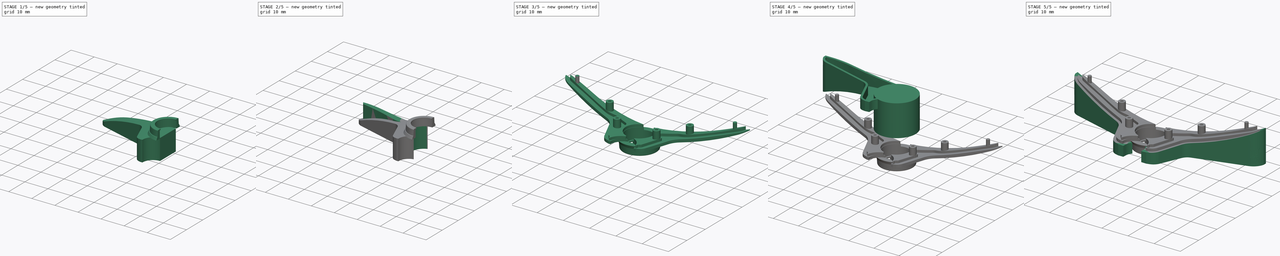
[diagram: build sequence overview — one tinted view per stage of 5, left to right]
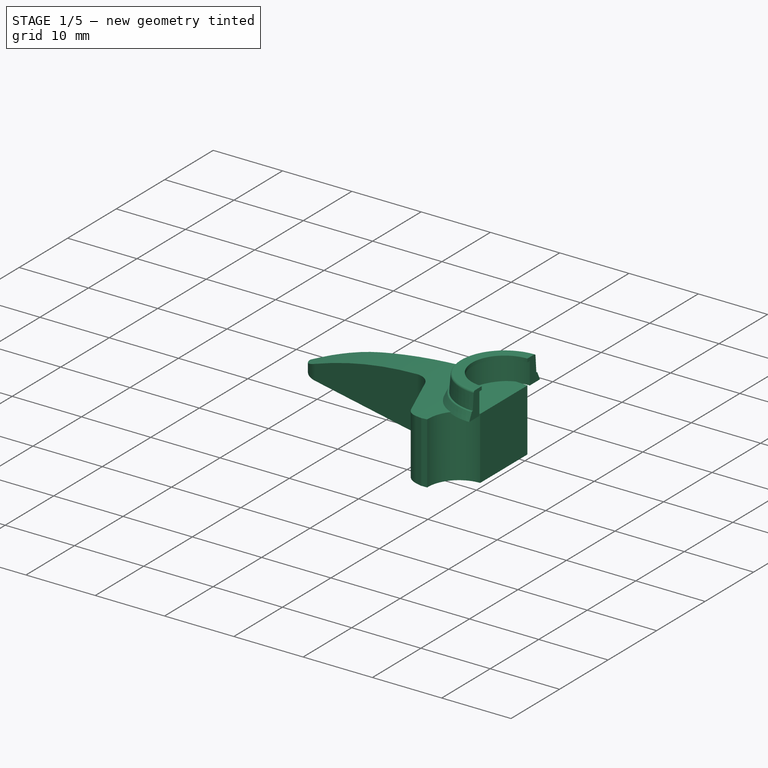
[diagram: stage 1 of 5 — iso view after this stage's code; geometry added in this stage tinted green]
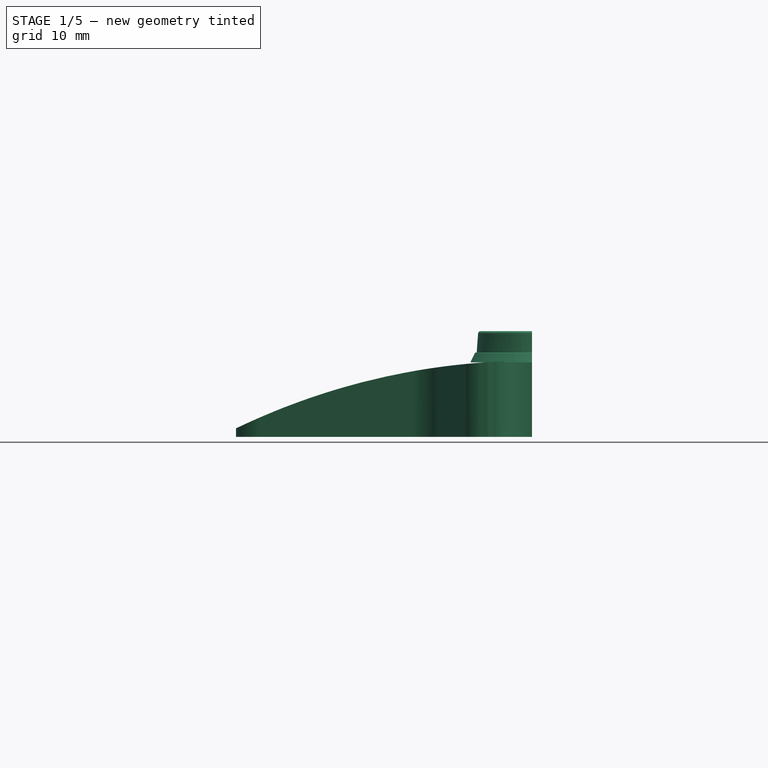
[diagram: stage 1 of 5 — front view after this stage's code; geometry added in this stage tinted green]
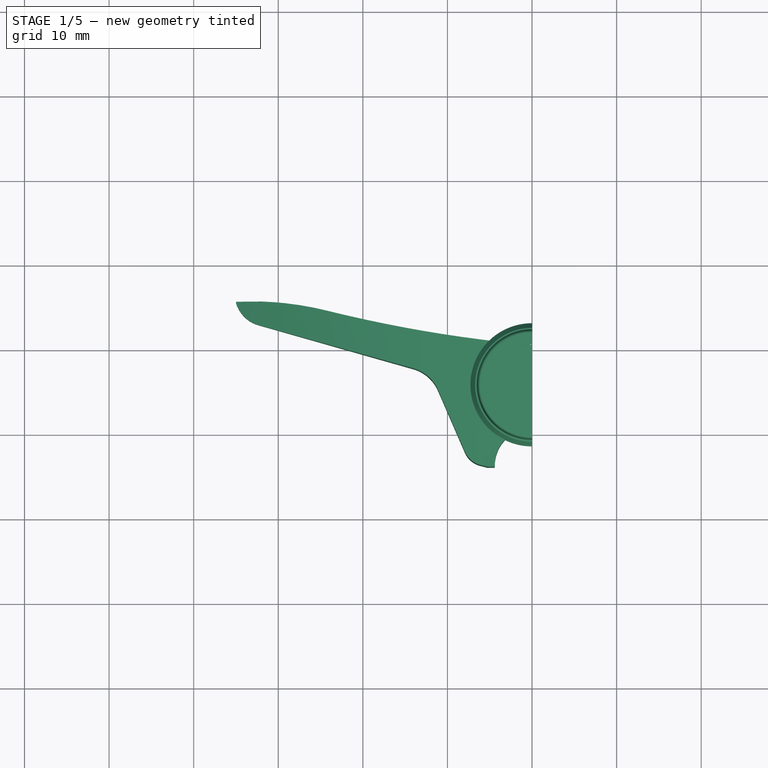
[diagram: stage 1 of 5 — top view after this stage's code; geometry added in this stage tinted green]
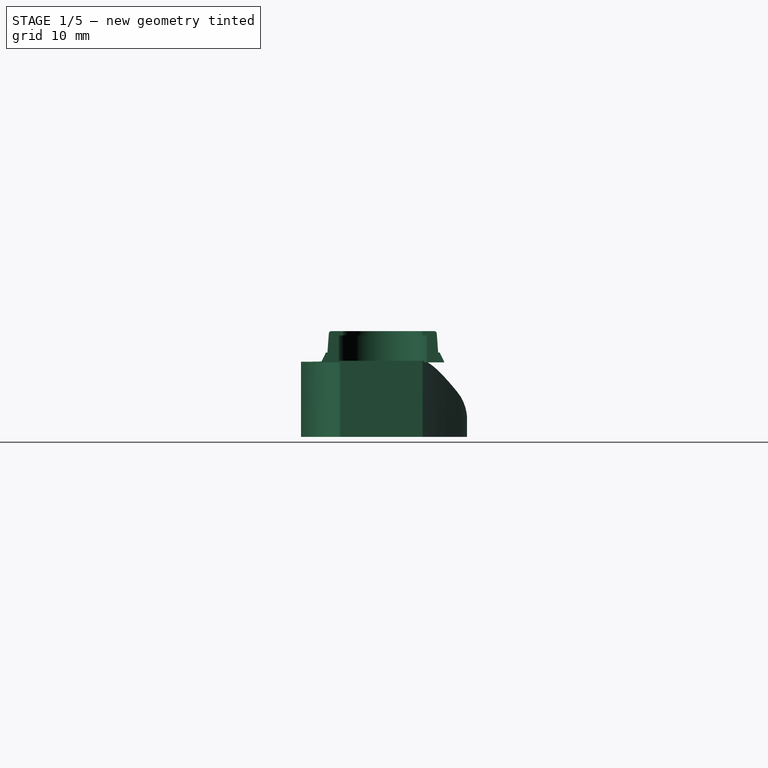
[diagram: stage 1 of 5 — right view after this stage's code; geometry added in this stage tinted green]
FCSTD DOCUMENT  (FreeCAD 0.14R3683 (Git))
Label: cap
License: CC-BY 3.0
LicenseURL: http://creativecommons.org/licenses/by/3.0/
objects: Sketcher::SketchObject×14, PartDesign::Pocket×9, PartDesign::Pad×3, App::DocumentObjectGroup×3, Part::MultiFuse×3, Part::Extrusion×2, Part::Thickness×2, Part::Cut×2, Part::Mirroring×2, Image::ImagePlane×1, Part::Feature×1, Part::Box×1, Part::MultiCommon×1, PartDesign::Revolution×1
note: 54 computed .brp shape members not serialized (recipe doc carries the construction recipe); baked Part::Feature solids carry a one-line shape summary decoded from their .brp

FEATURE [App::DocumentObjectGroup] Group001  label="bottom designs"
  Group = -> [Pad001,Pocket005,Pad002,Pocket006,Pocket007]
FEATURE [PartDesign::Pad] Pad
  Length = 9
  Length2 = 100
  Sketch = -> Sketch
  Type = 0
FEATURE [Sketcher::SketchObject] Sketch002
  Placement = pos=(0,0,9) rot=(0,0,1;0rad)
  Support = -> Pad [Face6]
  sketch-geometry (4):
    g0: ArcOfCircle CenterX=-33.4665 CenterY=-31.5993 CenterZ=0 NormalX=0 NormalY=0 NormalZ=1 Radius=37.3928 StartAngle=1.32181 EndAngle=1.61182
    g1: ArcOfCircle CenterX=13.5783 CenterY=153.423 CenterZ=0 NormalX=0 NormalY=0 NormalZ=1 Radius=153.517 StartAngle=4.4634 EndAngle=4.62383
    g2: LineSegment StartX=-35 StartY=5.76197 StartZ=0 EndX=0 EndY=5.76197 EndZ=0
    g3: LineSegment StartX=0 StartY=5.76197 StartZ=0 EndX=0 EndY=0.507838 EndZ=0
  constraints (14):
    c: Coincident(g1,g0)
    c: PointOnObject(g1,g-2)
    c: Tangent(g1,g0)
    c: DistanceX(g0) = -35
    c: DistanceY(g0) = 5.76197
    c: Horizontal(g2)
    c: Coincident(g2,g3)
    c: Coincident(g3,g1)
    c: Coincident(g2,g0)
    c: PointOnObject(g2,g-2)
    c: DistanceX(g0) = -24.252
    c: DistanceY(g0) = 4.64031
    c: DistanceY(g1) = 0.507838
    c: Radius(g0) = 37.3928
FEATURE [PartDesign::Pocket] Pocket001
  Length = 5
  Sketch = -> Sketch002
  Type = 1
FEATURE [Sketcher::SketchObject] Sketch001
  Placement = pos=(0,-14.0522,0) rot=(1,0,0;1.5708rad)
  Support = -> Pocket001 [Face8]
  sketch-geometry (3):
    g0: ArcOfCircle CenterX=3.14325e-05 CenterY=-71.5626 CenterZ=0 NormalX=0 NormalY=0 NormalZ=1 Radius=80.5626 StartAngle=1.5708 EndAngle=2.02022
    g1: LineSegment StartX=-35 StartY=1 StartZ=0 EndX=-35 EndY=9 EndZ=0
    g2: LineSegment StartX=-35 StartY=9 StartZ=0 EndX=0 EndY=9 EndZ=0
  constraints (10):
    c: DistanceY(g-1,g0) = 1
    c: Coincident(g1,g2)
    c: Coincident(g1,g0)
    c: Distance(g1) = 8
    c: Horizontal(g2)
    c: Vertical(g1)
    c: Distance(g2) = 35
    c: PointOnObject(g2,g-2)
    c: Coincident(g2,g0)
    c: Tangent(g2,g0)
FEATURE [PartDesign::Pocket] Pocket
  Length = 5
  Sketch = -> Sketch001
  Type = 1
FEATURE [Sketcher::SketchObject] Sketch003
  Placement = pos=(0,0,0) rot=(1,0,0;3.14159rad)
  Support = -> Pocket [Face2]
  sketch-geometry (12):
    g0: LineSegment StartX=-32.3411 StartY=-2.9757 StartZ=0 EndX=-14.0446 EndY=2.22199 EndZ=0
    g1: LineSegment StartX=-11.1137 StartY=4.78757 StartZ=0 EndX=-7.93918 EndY=12.1014 EndZ=0
    g2: LineSegment StartX=-6.12925 StartY=13.6469 StartZ=0 EndX=-5.25257 EndY=13.8727 EndZ=0
    g3: LineSegment StartX=0.015355 StartY=14.0522 StartZ=0 EndX=-35 EndY=14.0522 EndZ=0
    g4: ArcOfCircle CenterX=-31.2834 CenterY=-6.69923 CenterZ=0 NormalX=0 NormalY=0 NormalZ=1 Radius=3.87086 StartAngle=1.84758 EndAngle=2.85837
    g5: ArcOfCircle CenterX=-15.2882 CenterY=6.59946 CenterZ=0 NormalX=0 NormalY=0 NormalZ=1 Radius=4.55069 StartAngle=4.98918 EndAngle=5.87368
    g6: ArcOfCircle CenterX=-5.45297 CenterY=11.0223 CenterZ=0 NormalX=0 NormalY=0 NormalZ=1 Radius=2.71031 StartAngle=1.82298 EndAngle=2.73208
    g7: LineSegment StartX=-35 StartY=14.0522 StartZ=0 EndX=-35 EndY=-5.6175 EndZ=0
    g8: ArcOfCircle CenterX=0.0535813 CenterY=13.6795 CenterZ=0 NormalX=0 NormalY=0 NormalZ=1 Radius=4.4547 StartAngle=3.20574 EndAngle=4.70381
    g9: LineSegment StartX=0.015355 StartY=9.22501 StartZ=0 EndX=0.015355 EndY=14.0522 EndZ=0
    g10: LineSegment StartX=-5.25257 StartY=13.8727 StartZ=0 EndX=-4.40823 EndY=13.8596 EndZ=0
    g11: LineSegment StartX=-4.40823 StartY=13.8596 StartZ=0 EndX=-4.39195 EndY=13.394 EndZ=0
  constraints (18):
    c: Horizontal(g3)
    c: Tangent(g0,g4)
    c: Tangent(g0,g5)
    c: Tangent(g1,g5)
    c: Tangent(g1,g6)
    c: Tangent(g2,g6)
    c: Coincident(g7,g3)
    c: Coincident(g7,g4)
    c: Vertical(g7)
    c: DistanceY(g-1,g4) = -5.6175
    c: DistanceX(g2) = -5.25257
    c: DistanceY(g2) = 13.8727
    c: Coincident(g9,g8)
    c: Coincident(g9,g3)
    c: Vertical(g9)
    c: Coincident(g10,g11)
    c: Coincident(g11,g8)
    c: DistanceX(g4) = -35
FEATURE [PartDesign::Pocket] Pocket002
  Length = 5
  Sketch = -> Sketch003
  Type = 1
FEATURE [App::DocumentObjectGroup] Group002  label="top designs"
  Group = -> [Pocket001,Pocket,Pocket002,Pocket003,Pad]
FEATURE [Sketcher::SketchObject] Sketch018
  Placement = pos=(0,0,0) rot=(0.57735,0.57735,0.57735;2.0944rad)
  sketch-geometry (11):
    g0: LineSegment [constr] StartX=-4.19705 StartY=12.7682 StartZ=0 EndX=-4.19705 EndY=4.40039 EndZ=0
    g1: LineSegment StartX=-11.4812 StartY=8.80623 StartZ=0 EndX=-9.39705 EndY=8.80623 EndZ=0
    g2: LineSegment StartX=-9.39705 StartY=8.80623 StartZ=0 EndX=-9.39705 EndY=12 EndZ=0
    g3: LineSegment StartX=-9.39705 StartY=12 StartZ=0 EndX=-8.89705 EndY=12 EndZ=0
    g4: LineSegment StartX=-8.89705 StartY=12 StartZ=0 EndX=-8.89705 EndY=12.5 EndZ=0
    g5: LineSegment StartX=-8.89705 StartY=12.5 StartZ=0 EndX=-10.279 EndY=12.5 EndZ=0
    g6: LineSegment StartX=-10.5747 StartY=12.2256 StartZ=0 EndX=-10.742 EndY=9.98066 EndZ=0
    g7: LineSegment StartX=-10.742 StartY=9.98066 StartZ=0 EndX=-10.8131 EndY=9.98066 EndZ=0
    g8: LineSegment StartX=-10.9725 StartY=9.87981 StartZ=0 EndX=-11.4812 EndY=8.80623 EndZ=0
    g9: ArcOfCircle CenterX=-10.279 CenterY=12.2035 CenterZ=0 NormalX=0 NormalY=0 NormalZ=1 Radius=0.296478 StartAngle=1.5708 EndAngle=3.0672
    g10: ArcOfCircle CenterX=-10.8131 CenterY=9.80429 CenterZ=0 NormalX=0 NormalY=0 NormalZ=1 Radius=0.176366 StartAngle=1.5708 EndAngle=2.6991
  constraints (26):
    c: Vertical(g0)
    c: Coincident(g1,g2)
    c: Vertical(g2)
    c: Coincident(g2,g3)
    c: Coincident(g3,g4)
    c: Coincident(g4,g5)
    c: Horizontal(g5)
    c: Coincident(g6,g7)
    c: Coincident(g8,g1)
    c: Tangent(g6,g9)
    c: Tangent(g5,g9)
    c: Distance(g2,g5) = 0.5
    c: Parallel(g3,g5)
    c: Vertical(g4)
    c: Distance(g3) = 0.5
    c: DistanceX(g-1,g0) = -4.19705
    c: Distance(g1,g0) = 5.2
    c: Horizontal(g7)
    c: Tangent(g7,g10)
    c: Tangent(g8,g10)
    c: Distance(g6,g2) = 1.34496
    c: Distance(g7,g2) = 1.41606
    c: Distance(g8,g2) = 1.57544
    c: Distance(g5,g2) = 0.881982
    c: Distance(g6,g2) = 1.17764
    c: Horizontal(g1)
FEATURE [PartDesign::Revolution] Revolution  label="cylinder"
  Angle = 180
  Axis = (0,0,-8.36785)
  Base = (0,-4.19705,12.7682)
  Placement = pos=(0,0,0) rot=(0.57735,0.57735,0.57735;2.0944rad)
  ReferenceAxis = -> Sketch018 [Axis0]
  Sketch = -> Sketch018
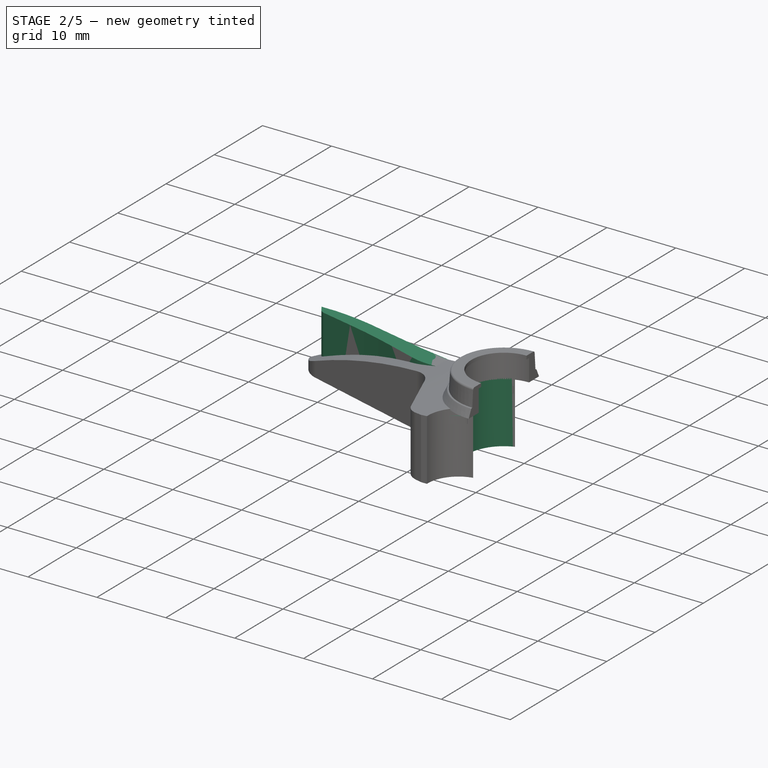
[diagram: stage 2 of 5 — iso view after this stage's code; geometry added in this stage tinted green]
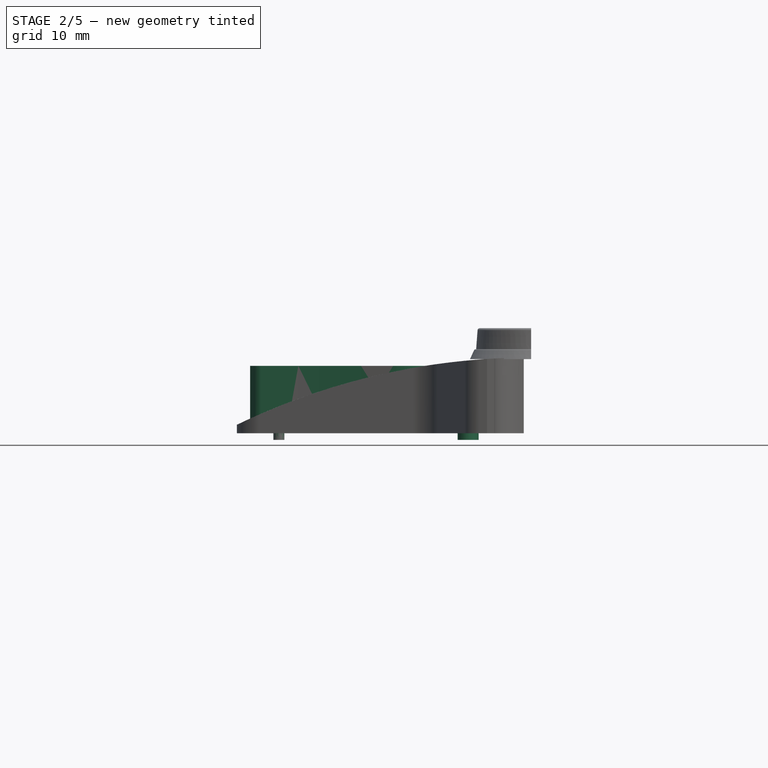
[diagram: stage 2 of 5 — front view after this stage's code; geometry added in this stage tinted green]
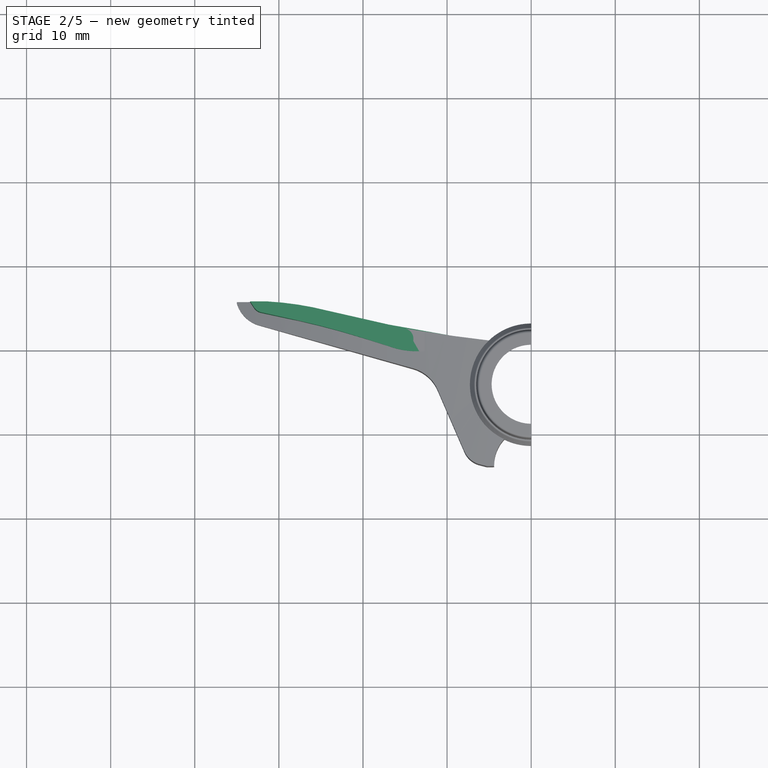
[diagram: stage 2 of 5 — top view after this stage's code; geometry added in this stage tinted green]
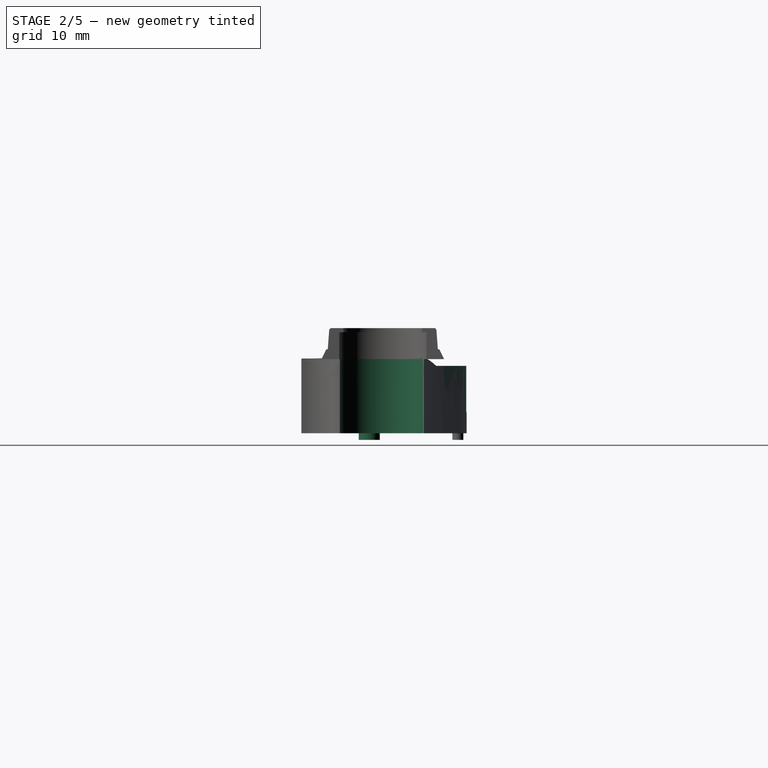
[diagram: stage 2 of 5 — right view after this stage's code; geometry added in this stage tinted green]
FEATURE [Sketcher::SketchObject] Sketch
  sketch-geometry (5):
    g0: LineSegment [constr] StartX=-30 StartY=4.78126 StartZ=0 EndX=30 EndY=4.78126 EndZ=0
    g1: LineSegment StartX=-35 StartY=5.76197 StartZ=0 EndX=0 EndY=5.76197 EndZ=0
    g2: LineSegment StartX=0 StartY=5.76197 StartZ=0 EndX=0 EndY=-14.0522 EndZ=0
    g3: LineSegment StartX=0 StartY=-14.0522 StartZ=0 EndX=-35 EndY=-14.0522 EndZ=0
    g4: LineSegment StartX=-35 StartY=-14.0522 StartZ=0 EndX=-35 EndY=5.76197 EndZ=0
  constraints (14):
    c: Horizontal(g0)
    c: Symmetric(g0,g0,g-2)
    c: Distance(g0) = 60
    c: Coincident(g1,g2)
    c: Coincident(g2,g3)
    c: Coincident(g3,g4)
    c: Coincident(g4,g1)
    c: Horizontal(g1)
    c: Horizontal(g3)
    c: Vertical(g2)
    c: Vertical(g4)
    c: PointOnObject(g-1,g2)
    c: DistanceX(g1) = -35
    c: DistanceY(g1) = 5.76197
FEATURE [Sketcher::SketchObject] Sketch007
  sketch-geometry (25):
    g0: LineSegment StartX=-33.4169 StartY=5.72741 StartZ=0 EndX=-32.9294 EndY=4.99478 EndZ=0
    g1: LineSegment StartX=-32.1282 StartY=4.4453 StartZ=0 EndX=-27.6867 EndY=3.45896 EndZ=0
    g2: LineSegment StartX=-20.2284 StartY=1.4473 StartZ=0 EndX=-16.4177 EndY=0.233404 EndZ=0
    g3: LineSegment StartX=-13.3166 StartY=-0.198197 StartZ=0 EndX=-12.5267 EndY=-0.173071 EndZ=0
    g4: LineSegment StartX=-11.2585 StartY=-0.372173 StartZ=0 EndX=-7.0205 EndY=-1.88682 EndZ=0
    g5: LineSegment StartX=-7.38029 StartY=-4.39596 StartZ=0 EndX=-8.19656 EndY=-4.4437 EndZ=0
    g6: LineSegment StartX=-8.89985 StartY=-5.53908 StartZ=0 EndX=-6.36701 EndY=-12.0529 EndZ=0
    g7: ArcOfCircle CenterX=-31.8461 CenterY=5.71556 CenterZ=0 NormalX=0 NormalY=0 NormalZ=1 Radius=1.3012 StartAngle=3.72867 EndAngle=4.49386
    g8: ArcOfCircle CenterX=-46.331 CenterY=-80.4964 CenterZ=0 NormalX=0 NormalY=0 NormalZ=1 Radius=86.0006 StartAngle=1.26242 EndAngle=1.35227
    g9: ArcOfCircle CenterX=-13.6107 CenterY=9.04545 CenterZ=0 NormalX=0 NormalY=0 NormalZ=1 Radius=9.24833 StartAngle=4.40401 EndAngle=4.74419
    g10: ArcOfCircle CenterX=-12.4173 CenterY=-3.61435 CenterZ=0 NormalX=0 NormalY=0 NormalZ=1 Radius=3.44301 StartAngle=1.22755 EndAngle=1.60259
    g11: ArcOfCircle CenterX=-7.45579 CenterY=-3.10477 CenterZ=0 NormalX=0 NormalY=0 NormalZ=1 Radius=1.2934 StartAngle=4.7708 EndAngle=7.51073
    g12: ArcOfCircle CenterX=-8.14957 CenterY=-5.24733 CenterZ=0 NormalX=0 NormalY=0 NormalZ=1 Radius=0.80501 StartAngle=1.6292 EndAngle=3.51244
    g13: ArcOfCircle CenterX=-6.08139 CenterY=-13.2746 CenterZ=0 NormalX=0 NormalY=0 NormalZ=1 Radius=0.800139 StartAngle=0.109121 EndAngle=1.20435
    g14: ArcOfCircle CenterX=-5.65402 CenterY=-11.7756 CenterZ=0 NormalX=0 NormalY=0 NormalZ=1 Radius=0.764995 StartAngle=3.51244 EndAngle=4.52745
    g15: ArcOfCircle CenterX=-5.03609 CenterY=-13.3096 CenterZ=0 NormalX=0 NormalY=0 NormalZ=1 Radius=0.278191 StartAngle=2.68683 EndAngle=5.60429
    g16: ArcOfCircle CenterX=0.43611 CenterY=-14.6337 CenterZ=0 NormalX=0 NormalY=0 NormalZ=1 Radius=5.3799 StartAngle=1.94836 EndAngle=2.92629
    g17: ArcOfCircle CenterX=-1.87958 CenterY=-9.48073 CenterZ=0 NormalX=0 NormalY=0 NormalZ=1 Radius=0.365439 StartAngle=5.85425 EndAngle=7.68842
    g18: ArcOfCircle CenterX=-0.11242 CenterY=-4.19705 CenterZ=0 NormalX=0 NormalY=0 NormalZ=1 Radius=5.21075 StartAngle=1.98622 EndAngle=4.37865
    g19: LineSegment StartX=-1.99259 StartY=0.699368 StartZ=0 EndX=-1.99259 EndY=0.570496 EndZ=0
    g20: LineSegment StartX=-2.21537 StartY=0.570496 StartZ=0 EndX=-1.99259 EndY=0.570496 EndZ=0
    g21: LineSegment StartX=-33.4169 StartY=5.72741 StartZ=0 EndX=-31.3498 EndY=5.72741 EndZ=0
    g22: GeomPoint [constr] X=-24.252 Y=4.64031 Z=0
    g23: ArcOfCircle CenterX=-33.4358 CenterY=-31.6072 CenterZ=0 NormalX=0 NormalY=0 NormalZ=1 Radius=37.3928 StartAngle=1.32265 EndAngle=1.51498
    g24: ArcOfCircle CenterX=13.8548 CenterY=155.043 CenterZ=0 NormalX=0 NormalY=0 NormalZ=1 Radius=155.155 StartAngle=4.46425 EndAngle=4.61007
  constraints (43):
    c: Tangent(g0,g7)
    c: Tangent(g1,g7)
    c: Tangent(g1,g8)
    c: Tangent(g2,g8)
    c: Tangent(g2,g9)
    c: Tangent(g3,g9)
    c: Tangent(g3,g10)
    c: Tangent(g4,g10)
    c: Tangent(g4,g11)
    c: Tangent(g5,g11)
    c: Tangent(g5,g12)
    c: Tangent(g6,g12)
    c: DistanceX(g4) = -7.0205
    c: DistanceY(g4) = -1.88682
    c: Coincident(g14,g6)
    c: Coincident(g14,g13)
    c: Tangent(g6,g14)
    c: Coincident(g15,g13)
    c: Coincident(g16,g15)
    c: Coincident(g17,g16)
    c: DistanceX(g16) = -1.54725
    c: DistanceY(g16) = -9.63272
    c: DistanceX(g15) = -5.03609
    c: DistanceY(g15) = -13.3096
    c: Coincident(g18,g17)
    c: Vertical(g19)
    c: Coincident(g20,g18)
    c: Coincident(g20,g19)
    c: Coincident(g21,g0)
    c: Horizontal(g21)
    c: DistanceX(g22) = -24.252
    c: DistanceY(g22) = 4.64031
    c: Coincident(g23,g22)
    c: Coincident(g24,g22)
    c: Tangent(g23,g24)
    c: Radius(g23) = 37.3928
    c: Coincident(g23,g21)
    c: Coincident(g24,g19)
    c: DistanceX(g0) = -33.4169
    c: DistanceY(g0) = 5.72741
    c: DistanceY(g-1,g18) = -4.19705
    c: Horizontal(g20)
    c: Radius(g18) = 5.21075
FEATURE [PartDesign::Pad] Pad001
  Length = 8
  Length2 = 100
  Sketch = -> Sketch007
  Type = 0
FEATURE [Sketcher::SketchObject] Sketch011
  Placement = pos=(0,5.72741,0) rot=(0,0.707107,0.707107;3.14159rad)
  Support = -> Pad001 [Face24]
  sketch-geometry (4):
    g0: LineSegment StartX=0 StartY=0 StartZ=0 EndX=33.4169 EndY=1.7e-11 EndZ=0
    g1: ArcOfCircle CenterX=-3.1351e-05 CenterY=-76.2637 CenterZ=0 NormalX=0 NormalY=0 NormalZ=1 Radius=83.2637 StartAngle=1.15782 EndAngle=1.5708
    g2: LineSegment [constr] StartX=0 StartY=7 StartZ=0 EndX=9.15787 EndY=7 EndZ=0
    g3: LineSegment StartX=0 StartY=7 StartZ=0 EndX=0 EndY=0 EndZ=0
  constraints (11):
    c: Coincident(g0,g-1)
    c: Horizontal(g2)
    c: Tangent(g2,g1)
    c: Distance(g1,g0) = 7
    c: Coincident(g3,g1)
    c: Coincident(g3,g-1)
    c: PointOnObject(g1,g-2)
    c: Coincident(g1,g0)
    c: PointOnObject(g0,g-1)
    c: DistanceX(g0) = 33.4169
    c: Coincident(g2,g1)
FEATURE [PartDesign::Pocket] Pocket005
  Length = 5
  Sketch = -> Sketch011
  Type = 1
FEATURE [Sketcher::SketchObject] Sketch010
  Placement = pos=(0,0,8) rot=(0,0,1;0rad)
  Support = -> Pocket005 [Face4]
  sketch-geometry (5):
    g0: Circle CenterX=-7.5 CenterY=-5.80138 CenterZ=0 NormalX=0 NormalY=0 NormalZ=1 Radius=0.5
    g1: Circle CenterX=-15.25 CenterY=1.28294 CenterZ=0 NormalX=0 NormalY=0 NormalZ=1 Radius=0.5
    g2: Circle CenterX=-30 CenterY=4.72971 CenterZ=0 NormalX=0 NormalY=0 NormalZ=1 Radius=0.65
    g3: Circle CenterX=-15.25 CenterY=1.28294 CenterZ=0 NormalX=0 NormalY=0 NormalZ=1 Radius=1.25
    g4: Circle CenterX=-7.5 CenterY=-5.80138 CenterZ=0 NormalX=0 NormalY=0 NormalZ=1 Radius=1.25
  constraints (11):
    c: Radius(g0) = 0.5
    c: Equal(g0,g1)
    c: DistanceX(g-2,g0) = -7.5
    c: DistanceX(g-2,g1) = -15.25
    c: Distance(g1,g0) = 10.5
    c: Radius(g2) = 0.65
    c: DistanceX(g-2,g2) = -30
    c: Coincident(g3,g1)
    c: Coincident(g4,g0)
    c: Radius(g3) = 1.25
    c: Equal(g3,g4)
FEATURE [PartDesign::Pad] Pad002
  Length = 8.8
  Length2 = 100
  Reversed = true
  Sketch = -> Sketch010
  Type = 0
FEATURE [Image::ImagePlane] ImagePlane  label="image"
  Placement = pos=(1,0,-10) rot=(0,0,-1;0.008727rad)
  XSize = 142
  YSize = 106.46
FEATURE [Sketcher::SketchObject] Sketch012
  ExternalGeometry = -> [Pad002]
  Placement = pos=(0,0,-0.8) rot=(1,0,0;3.14159rad)
  Support = -> Pad002 [Face37]
  sketch-geometry (1):
    g0: Circle CenterX=-15.25 CenterY=-1.28294 CenterZ=0 NormalX=0 NormalY=0 NormalZ=1 Radius=1.25
  constraints (2):
    c: Coincident(g0,g-3)
    c: Equal(g0,g-3)
FEATURE [PartDesign::Pocket] Pocket006
  Length = 3.55
  Sketch = -> Sketch012
  Type = 0
FEATURE [PartDesign::Pocket] Pocket003
  Length = 5
  Sketch = -> Sketch004
  Type = 1
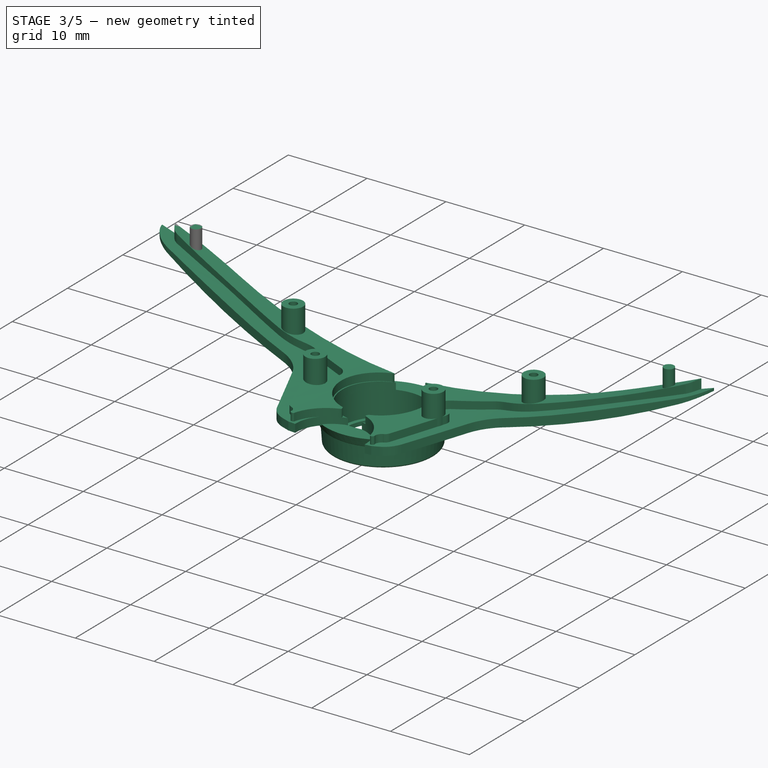
[diagram: stage 3 of 5 — iso view after this stage's code; geometry added in this stage tinted green]
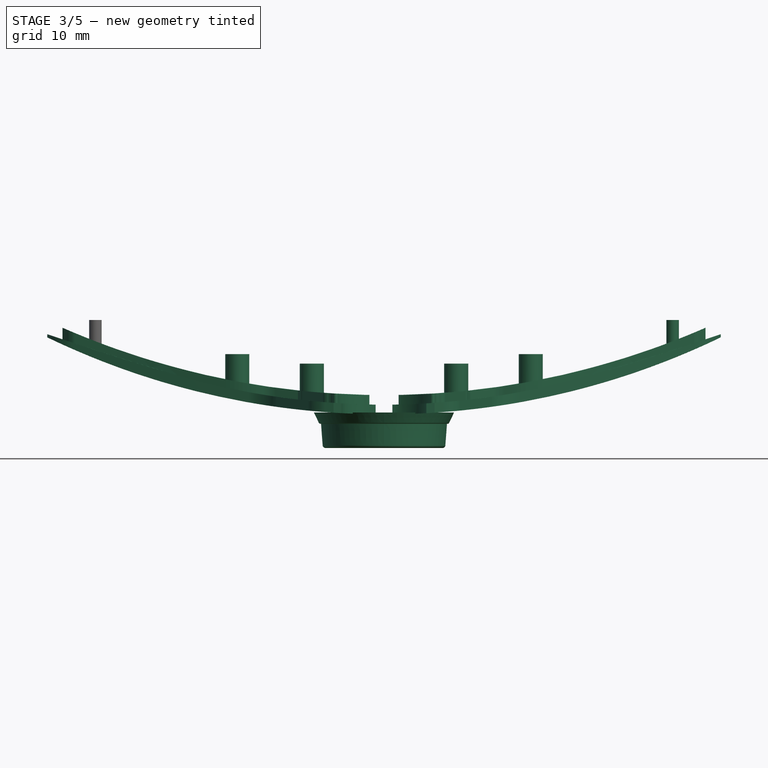
[diagram: stage 3 of 5 — front view after this stage's code; geometry added in this stage tinted green]
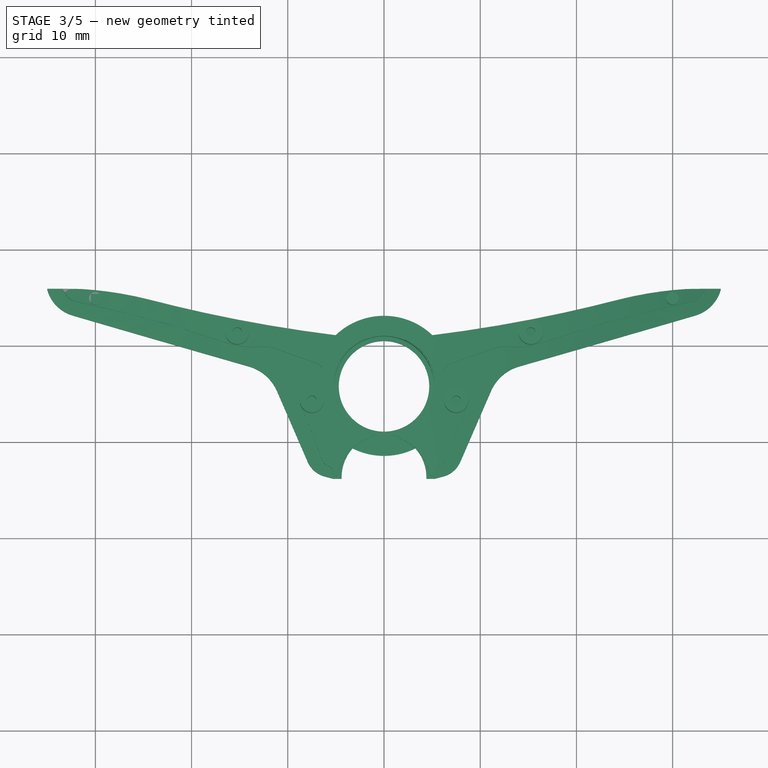
[diagram: stage 3 of 5 — top view after this stage's code; geometry added in this stage tinted green]
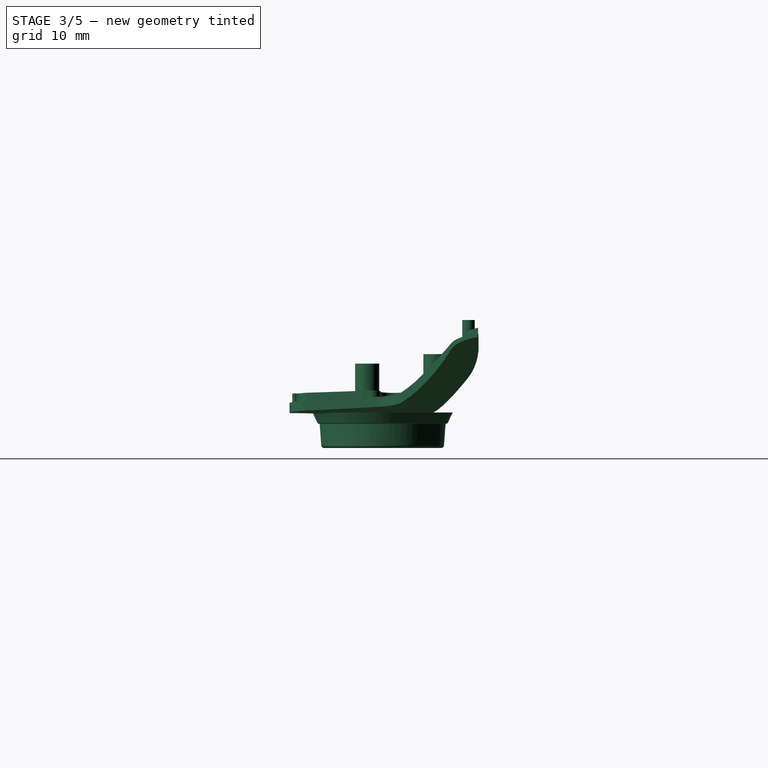
[diagram: stage 3 of 5 — right view after this stage's code; geometry added in this stage tinted green]
FEATURE [Sketcher::SketchObject] Sketch013
  Placement = pos=(0,0,-0.8) rot=(1,0,0;3.14159rad)
  Support = -> Pocket006 [Face35]
  sketch-geometry (1):
    g0: Circle CenterX=-7.5 CenterY=5.80138 CenterZ=0 NormalX=0 NormalY=0 NormalZ=1 Radius=1.25
FEATURE [PartDesign::Pocket] Pocket007
  Length = 4.53
  Sketch = -> Sketch013
  Type = 0
FEATURE [Sketcher::SketchObject] Sketch014
  Placement = pos=(0,5.72741,0) rot=(0,0.707107,0.707107;3.14159rad)
  Support = -> Pocket007 [Face5]
  sketch-geometry (6):
    g0: GeomPoint [constr] X=-0.157161 Y=8 Z=0
    g1: GeomPoint [constr] X=33.4169 Y=1.29087 Z=0
    g2: LineSegment [constr] StartX=-0.157161 StartY=8 StartZ=0 EndX=14.6321 EndY=8 EndZ=0
    g3: ArcOfCircle CenterX=-0.157217 CenterY=-79.3609 CenterZ=0 NormalX=0 NormalY=0 NormalZ=1 Radius=87.3609 StartAngle=1.17633 EndAngle=1.5708
    g4: LineSegment StartX=33.4169 StartY=1.29087 StartZ=0 EndX=33.4169 EndY=8 EndZ=0
    g5: LineSegment StartX=33.4169 StartY=8 StartZ=0 EndX=-0.157161 EndY=8 EndZ=0
  constraints (9):
    c: DistanceY(g-1,g0) = 8
    c: Coincident(g2,g0)
    c: Horizontal(g2)
    c: Coincident(g3,g0)
    c: Coincident(g3,g1)
    c: Tangent(g3,g2)
    c: Coincident(g4,g1)
    c: Coincident(g4,g5)
    c: Coincident(g5,g0)
FEATURE [PartDesign::Pocket] Pocket008  label="bottom"
  Length = 5
  Sketch = -> Sketch014
  Type = 1
FEATURE [Sketcher::SketchObject] Sketch006
  Placement = pos=(0.214017,-13.7879,0) rot=(0.99994,0.00776,0.00776;1.57086rad)
  Support = -> Pocket003 [Face10]
  sketch-geometry (7):
    g0: ArcOfCircle CenterX=5.65776e-05 CenterY=-68.8251 CenterZ=0 NormalX=0 NormalY=0 NormalZ=1 Radius=76.8251 StartAngle=1.5708 EndAngle=1.85352
    g1: LineSegment [constr] StartX=-25.9208 StartY=8 StartZ=0 EndX=4.8e-05 EndY=8 EndZ=0
    g2: GeomPoint [constr] X=-35 Y=0.647191 Z=0
    g3: ArcOfCircle CenterX=60.0356 CenterY=-275.485 CenterZ=0 NormalX=0 NormalY=0 NormalZ=1 Radius=292.029 StartAngle=1.85352 EndAngle=1.90227
    g4: LineSegment StartX=-35 StartY=0.647191 StartZ=0 EndX=-35 EndY=0 EndZ=0
    g5: LineSegment StartX=-35 StartY=0 StartZ=0 EndX=0 EndY=0 EndZ=0
    g6: LineSegment StartX=0 StartY=0 StartZ=0 EndX=4.8e-05 EndY=8 EndZ=0
  constraints (17):
    c: Coincident(g1,g0)
    c: Horizontal(g1)
    c: Tangent(g1,g0)
    c: DistanceX(g0) = 4.8e-05
    c: DistanceY(g0) = 8
    c: DistanceX(g2) = -35
    c: DistanceY(g2) = 0.647191
    c: Coincident(g3,g2)
    c: Coincident(g3,g0)
    c: Tangent(g3,g0)
    c: Coincident(g4,g2)
    c: PointOnObject(g4,g-1)
    c: Vertical(g4)
    c: Coincident(g4,g5)
    c: Coincident(g5,g-1)
    c: Coincident(g5,g6)
    c: Coincident(g6,g0)
FEATURE [PartDesign::Pocket] Pocket004  label="top"
  Length = 5
  Sketch = -> Sketch006
  Type = 1
FEATURE [Part::MultiFuse] Fusion  label="left"
  Shapes = -> [Pocket008,Revolution,Pocket004]
FEATURE [Part::Mirroring] Part__Mirroring  label="right"
  Base = (0,0,0)
  Normal = (1,0,0)
  Source = -> Fusion
FEATURE [Part::MultiFuse] Fusion003  label="body"
  Placement = pos=(0,0,0) rot=(0,1,0;3.14159rad)
  Shapes = -> [Part__Mirroring,Fusion]
FEATURE [App::DocumentObjectGroup] Group  label="original"
  Group = -> [Fusion002,ImagePlane,Pocket008,Fusion003,Group002,Group001]
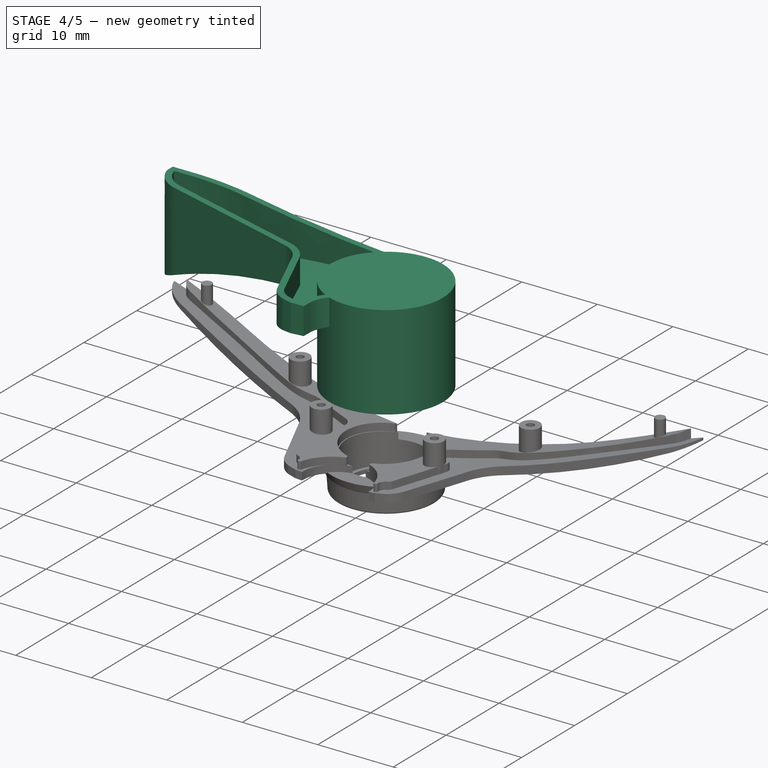
[diagram: stage 4 of 5 — iso view after this stage's code; geometry added in this stage tinted green]
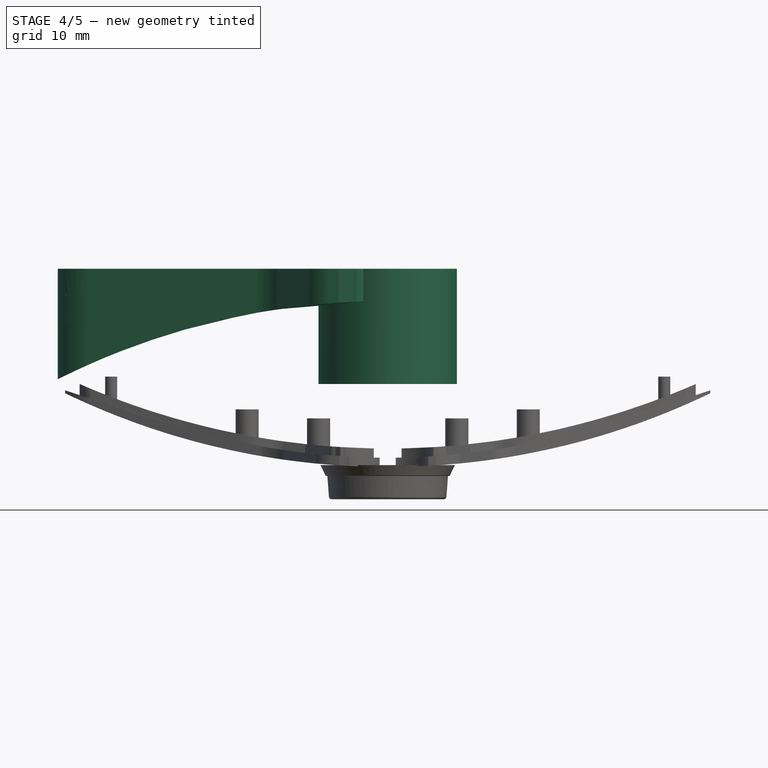
[diagram: stage 4 of 5 — front view after this stage's code; geometry added in this stage tinted green]
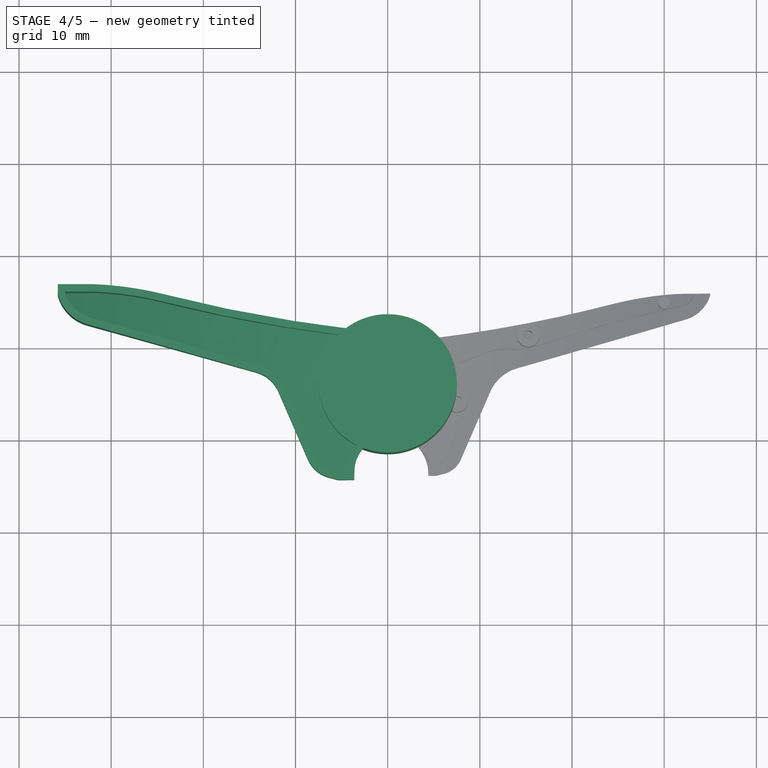
[diagram: stage 4 of 5 — top view after this stage's code; geometry added in this stage tinted green]
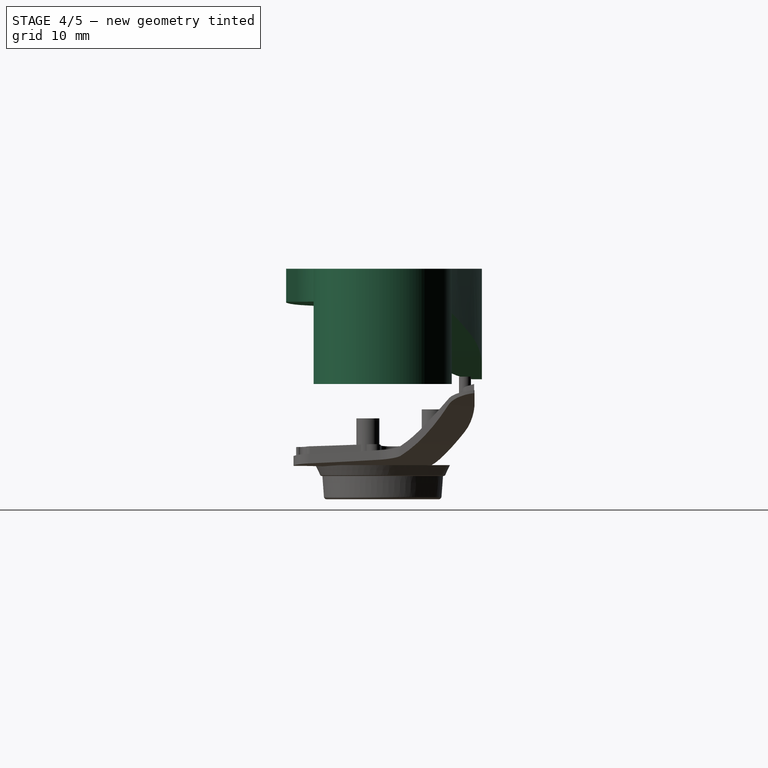
[diagram: stage 4 of 5 — right view after this stage's code; geometry added in this stage tinted green]
FEATURE [Part::Feature] Face
  Placement = pos=(0,0,0.8) rot=(0,0,1;0rad)
  shape: bbox 44.36 x 35.59 x 9.652 mm, 1 faces, 0 solids (baked)
FEATURE [Part::Box] Box  label="Cube"
  Height = 12.5
  Length = 40
  Placement = pos=(-40,-15,0) rot=(0,0,1;0rad)
  Width = 30
FEATURE [Part::Extrusion] Extrude
  Base = -> Face
  Dir = (0,0,30)
  Solid = true
FEATURE [Part::MultiCommon] Common
  Shapes = -> [Box,Extrude]
FEATURE [Part::Thickness] Thickness001
  Faces = -> Common [Face4]
  Intersection = false
  Join = 2
  Mode = 0
  SelfIntersection = false
  Value = 0.8
FEATURE [Sketcher::SketchObject] Sketch004
  Placement = pos=(0,0,0) rot=(1,0,0;3.14159rad)
  Support = -> Pocket002 [Face2]
  sketch-geometry (1):
    g0: Circle CenterX=0 CenterY=4.19705 CenterZ=0 NormalX=0 NormalY=0 NormalZ=1 Radius=5.2
  constraints (2):
    c: Radius(g0) = 5.2
    c: DistanceY(g-1,g0) = 4.19705
FEATURE [Sketcher::SketchObject] Sketch015
  Placement = pos=(0,0,0) rot=(1,0,0;3.14159rad)
  Support = -> Pocket002 [Face2]
  sketch-geometry (1):
    g0: Circle CenterX=0 CenterY=4.19705 CenterZ=0 NormalX=0 NormalY=0 NormalZ=1 Radius=7.5
  constraints (2):
    c: Radius(g0) = 7.5
    c: DistanceY(g-1,g0) = 4.19705
FEATURE [Part::Extrusion] Extrude001
  Base = -> Sketch015
  Dir = (0,0,12.5)
  Solid = true
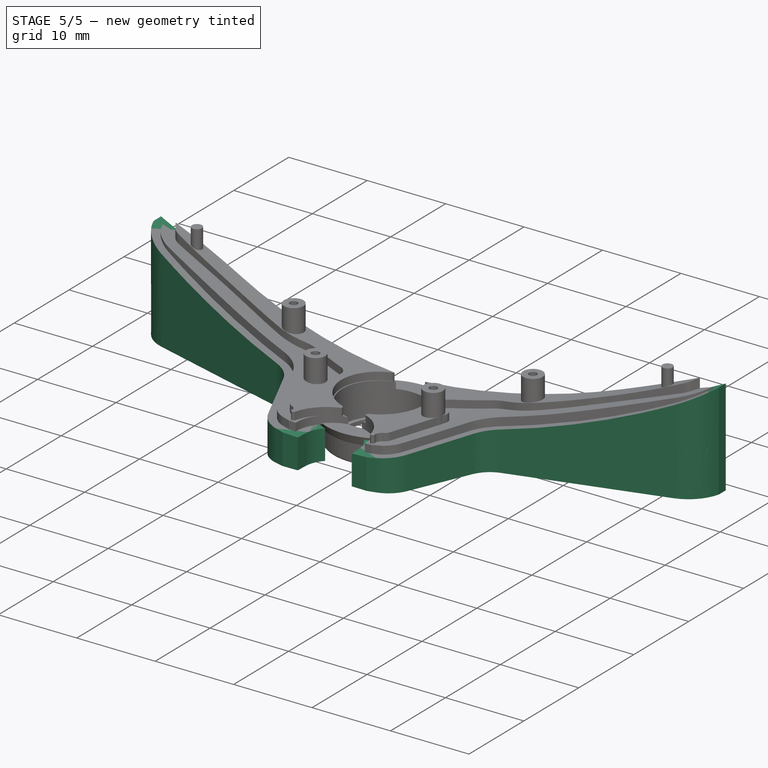
[diagram: stage 5 of 5 — iso view after this stage's code; geometry added in this stage tinted green]
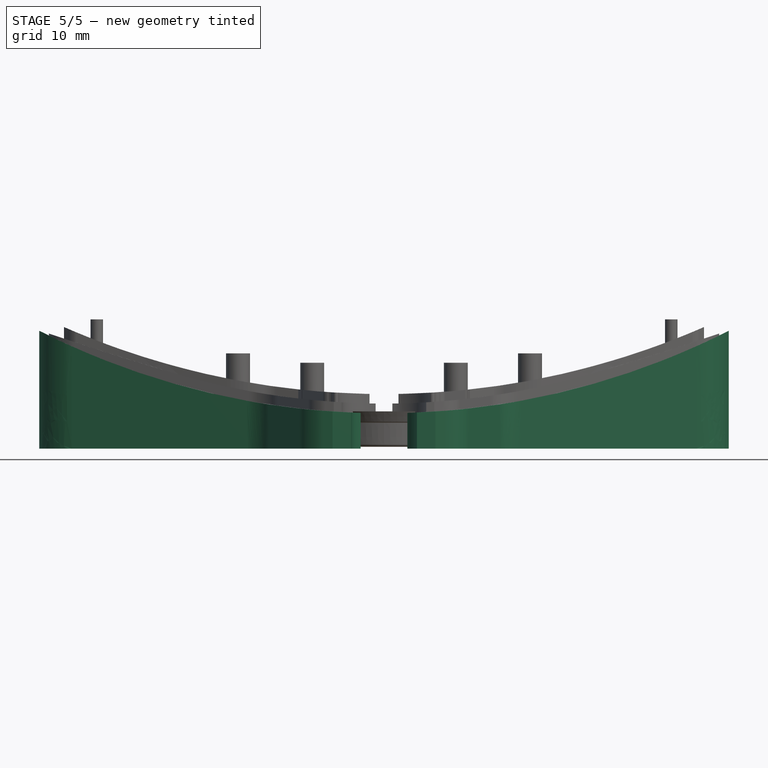
[diagram: stage 5 of 5 — front view after this stage's code; geometry added in this stage tinted green]
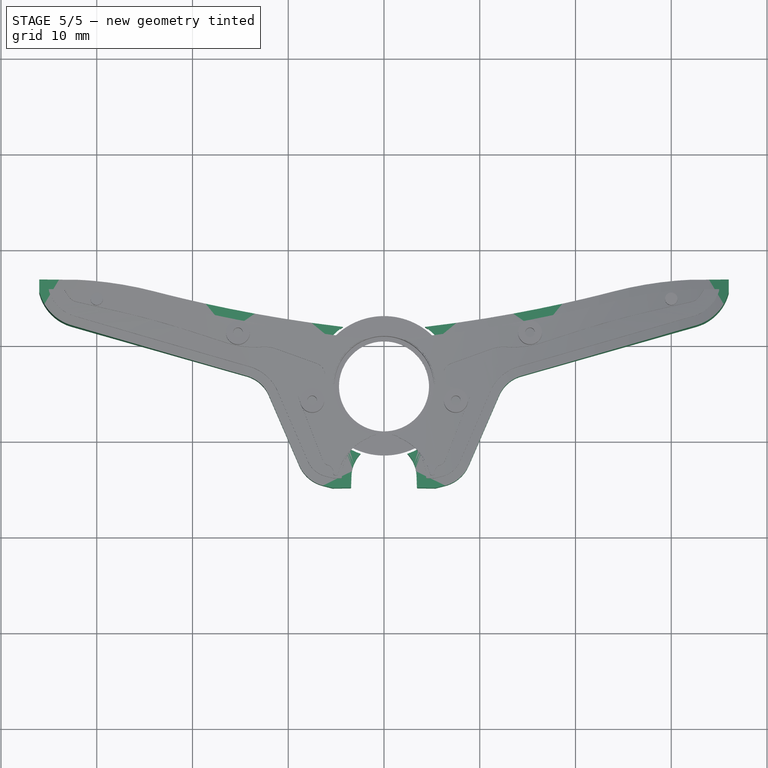
[diagram: stage 5 of 5 — top view after this stage's code; geometry added in this stage tinted green]
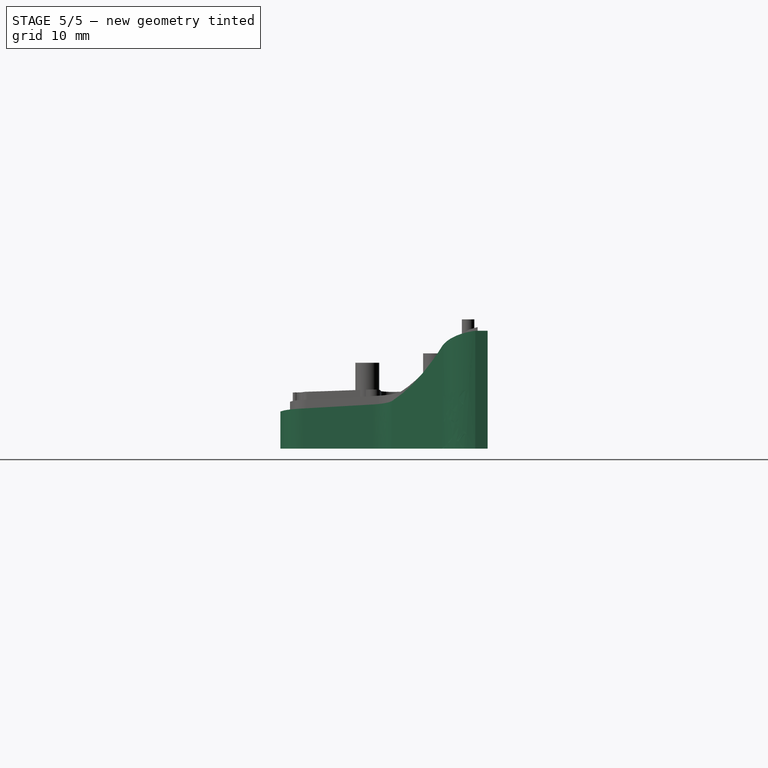
[diagram: stage 5 of 5 — right view after this stage's code; geometry added in this stage tinted green]
FEATURE [Part::Thickness] Thickness
  Faces = -> Common [Face4]
  Intersection = false
  Join = 2
  Mode = 0
  SelfIntersection = false
  Value = 1
FEATURE [Part::Cut] Cut
  Base = -> Thickness
  Tool = -> Thickness001
FEATURE [Part::Cut] Cut001
  Base = -> Cut
  Tool = -> Extrude001
FEATURE [Part::Mirroring] Part__Mirroring001  label="Cut001 (Mirror #2)"
  Base = (0,0,0)
  Normal = (1,0,0)
  Source = -> Cut001
FEATURE [Part::MultiFuse] Fusion002  label="support"
  Placement = pos=(0,0,-0.2) rot=(0,1,0;3.14159rad)
  Shapes = -> [Part__Mirroring001,Cut001]
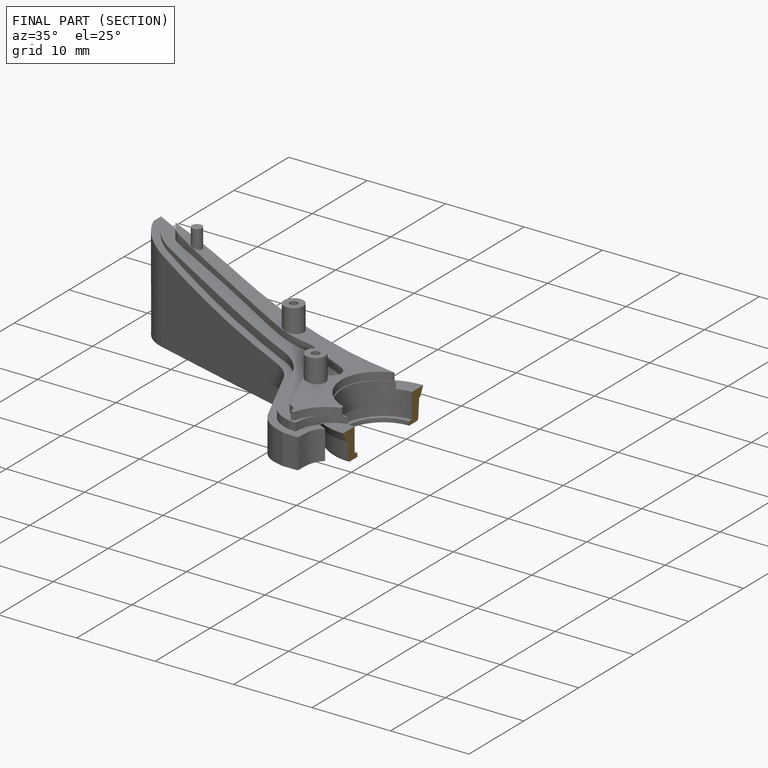
[diagram: finished part — half-section view (interior)]
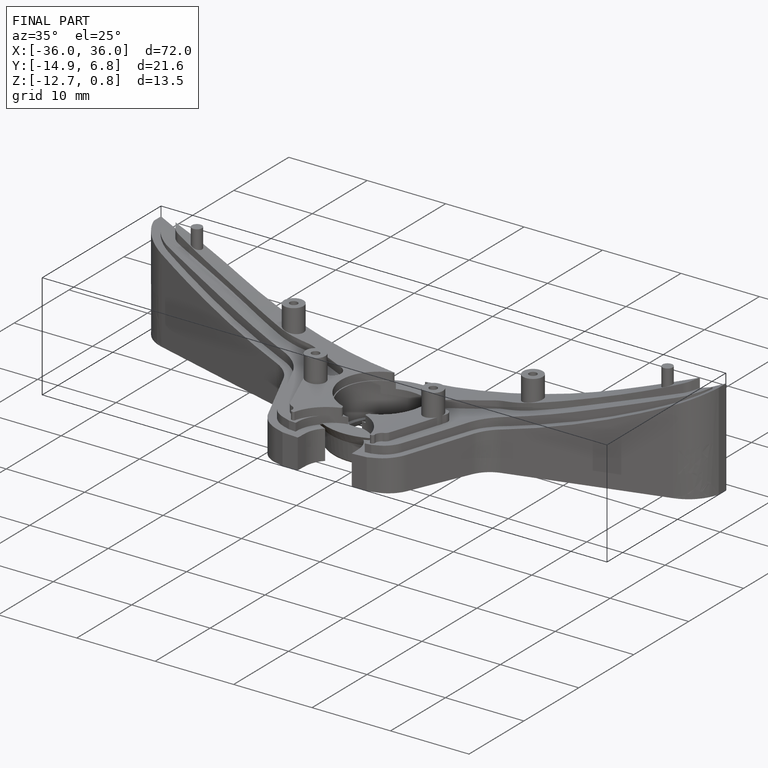
[diagram: finished part — iso view with bounding-box wireframe]
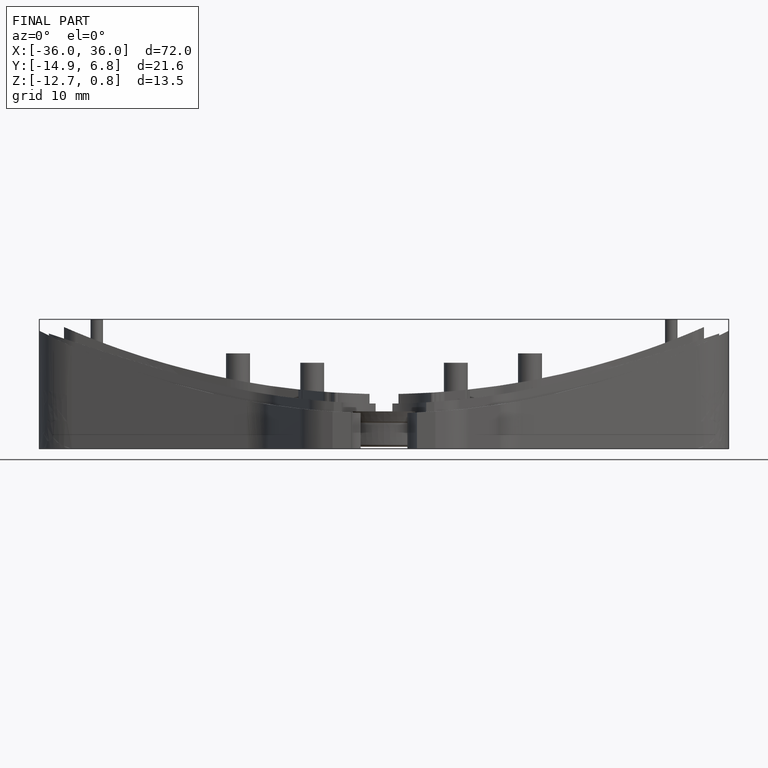
[diagram: finished part — front view with bounding-box wireframe]
